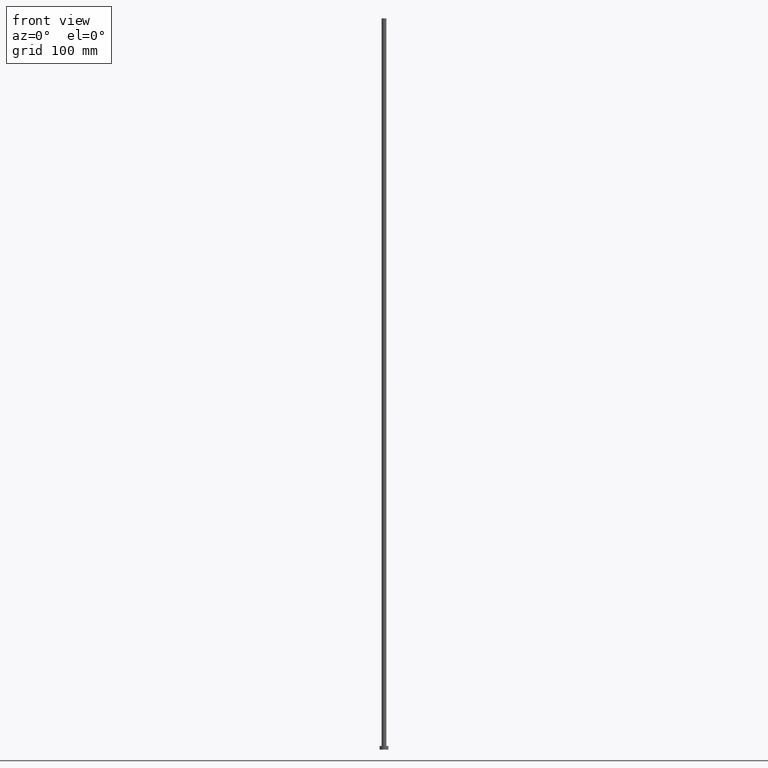
[diagram: clean part render]
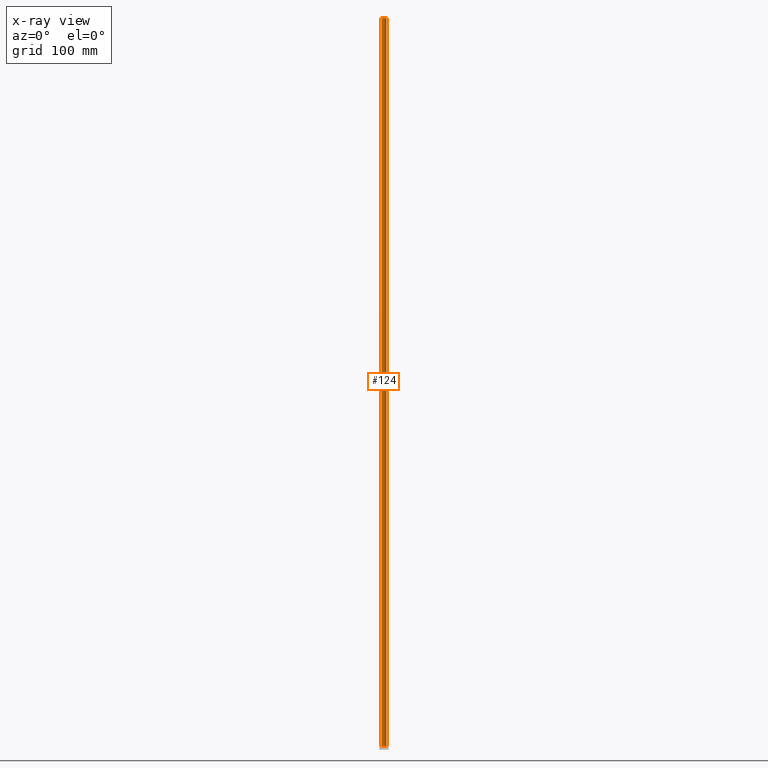
[diagram: x-ray — body ghosted, one internal face saturated and labeled with its STEP entity id]
A machine part, front view, then the same camera in x-ray: the body is ghosted and one INTERNAL B-rep face — a face not visible from any outside direction — is saturated and labeled: STEP entity #124.
In plain terms, the highlighted cylindrical surface (edge-blend (fillet) strip) has radius 3.25 mm, axis along (-0, -0, -1).
Its self-contained STEP definition (entity closure, byte-faithful):
#4 = VERTEX_POINT ( 'NONE', #89 ) ;
#5 = EDGE_CURVE ( 'NONE', #28, #4, #201, .T. ) ;
#14 = CYLINDRICAL_SURFACE ( 'NONE', #41, 3.250000000000000444 ) ;
#28 = VERTEX_POINT ( 'NONE', #71 ) ;
#41 = AXIS2_PLACEMENT_3D ( 'NONE', #135, #115, #95 ) ;
#51 = CARTESIAN_POINT ( 'NONE',  ( -3.250000000000000444, 0.000000000000000000, 1000.000000000000000 ) ) ;
#52 = AXIS2_PLACEMENT_3D ( 'NONE', #102, #223, #227 ) ;
#54 = FACE_OUTER_BOUND ( 'NONE', #103, .T. ) ;
#65 = CARTESIAN_POINT ( 'NONE',  ( 3.250000000000000444, 3.980102097228897245E-16, 5.000000000000000000 ) ) ;
#69 = VECTOR ( 'NONE', #93, 1000.000000000000000 ) ;
#71 = CARTESIAN_POINT ( 'NONE',  ( 3.250000000000000444, 3.980102097228897245E-16, 1000.000000000000000 ) ) ;
#74 = DIRECTION ( 'NONE',  ( -0.000000000000000000, -0.000000000000000000, -1.000000000000000000 ) ) ;
#78 = LINE ( 'NONE', #51, #69 ) ;
#89 = CARTESIAN_POINT ( 'NONE',  ( -3.250000000000000444, 0.000000000000000000, 1000.000000000000000 ) ) ;
#91 = EDGE_CURVE ( 'NONE', #4, #108, #78, .T. ) ;
#93 = DIRECTION ( 'NONE',  ( -0.000000000000000000, -0.000000000000000000, -1.000000000000000000 ) ) ;
#95 = DIRECTION ( 'NONE',  ( -1.000000000000000000, 0.000000000000000000, 0.000000000000000000 ) ) ;
#102 = CARTESIAN_POINT ( 'NONE',  ( 0.000000000000000000, 0.000000000000000000, 5.000000000000000000 ) ) ;
#103 = EDGE_LOOP ( 'NONE', ( #132, #112, #105, #202 ) ) ;
#105 = ORIENTED_EDGE ( 'NONE', *, *, #134, .T. ) ;
#106 = EDGE_CURVE ( 'NONE', #28, #150, #133, .T. ) ;
#108 = VERTEX_POINT ( 'NONE', #157 ) ;
#112 = ORIENTED_EDGE ( 'NONE', *, *, #106, .T. ) ;
#115 = DIRECTION ( 'NONE',  ( -0.000000000000000000, -0.000000000000000000, -1.000000000000000000 ) ) ;
#124 = ADVANCED_FACE ( 'NONE', ( #54 ), #14, .T. ) ;
#132 = ORIENTED_EDGE ( 'NONE', *, *, #5, .F. ) ;
#133 = LINE ( 'NONE', #251, #160 ) ;
#134 = EDGE_CURVE ( 'NONE', #150, #108, #159, .T. ) ;
#135 = CARTESIAN_POINT ( 'NONE',  ( 0.000000000000000000, 0.000000000000000000, 1000.000000000000000 ) ) ;
#150 = VERTEX_POINT ( 'NONE', #65 ) ;
#157 = CARTESIAN_POINT ( 'NONE',  ( -3.250000000000000444, 0.000000000000000000, 5.000000000000000000 ) ) ;
#159 = CIRCLE ( 'NONE', #52, 3.250000000000000444 ) ;
#160 = VECTOR ( 'NONE', #74, 1000.000000000000000 ) ;
#173 = CARTESIAN_POINT ( 'NONE',  ( 0.000000000000000000, 0.000000000000000000, 1000.000000000000000 ) ) ;
#201 = CIRCLE ( 'NONE', #210, 3.250000000000000444 ) ;
#202 = ORIENTED_EDGE ( 'NONE', *, *, #91, .F. ) ;
#210 = AXIS2_PLACEMENT_3D ( 'NONE', #173, #230, #213 ) ;
#213 = DIRECTION ( 'NONE',  ( 1.000000000000000000, 0.000000000000000000, 0.000000000000000000 ) ) ;
#223 = DIRECTION ( 'NONE',  ( 0.000000000000000000, 0.000000000000000000, 1.000000000000000000 ) ) ;
#227 = DIRECTION ( 'NONE',  ( 1.000000000000000000, 0.000000000000000000, 0.000000000000000000 ) ) ;
#230 = DIRECTION ( 'NONE',  ( 0.000000000000000000, 0.000000000000000000, 1.000000000000000000 ) ) ;
#251 = CARTESIAN_POINT ( 'NONE',  ( 3.250000000000000444, 3.980102097228897245E-16, 1000.000000000000000 ) ) ;